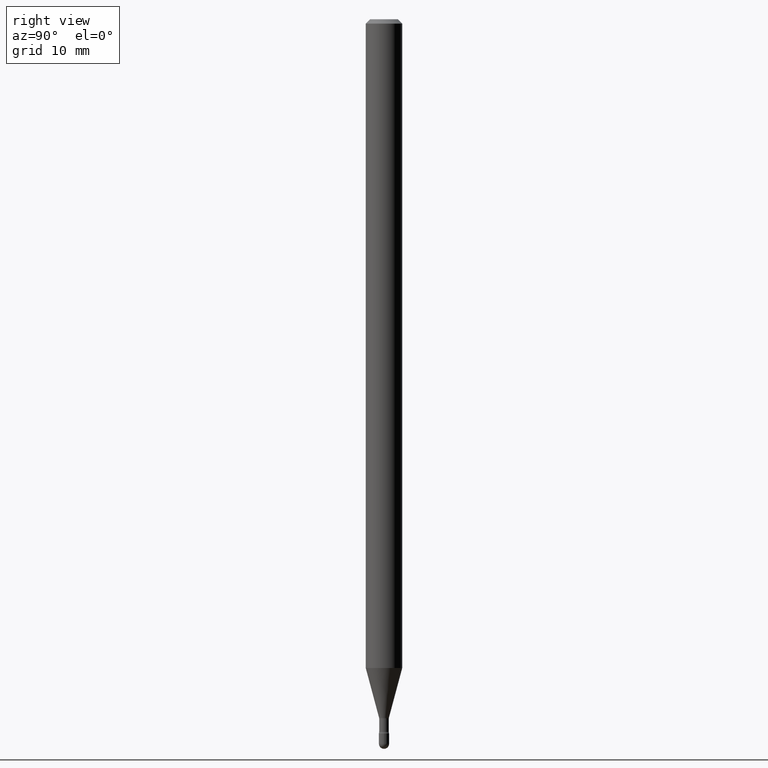
[diagram: clean part render]
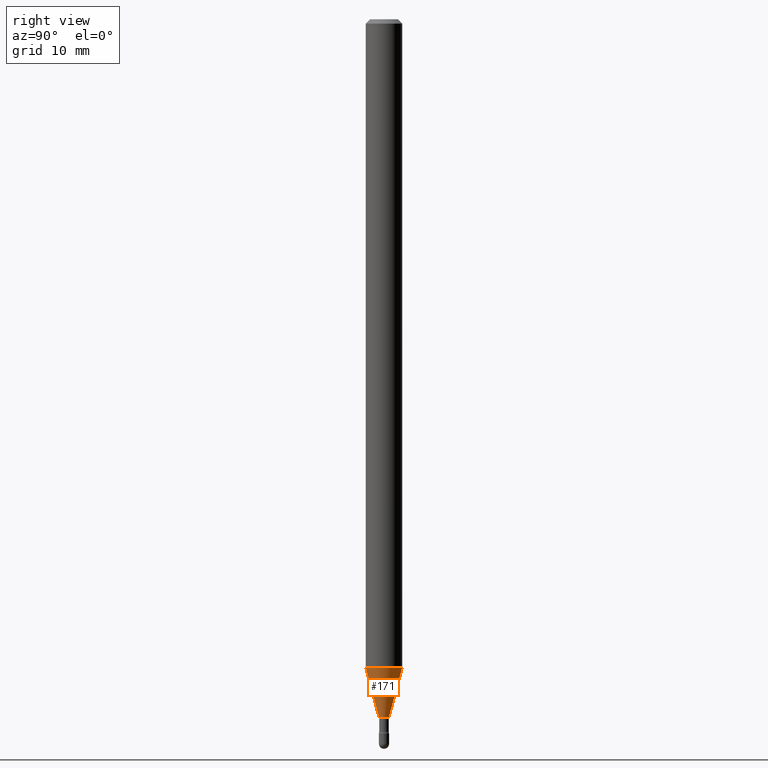
[diagram: same view with one face highlighted and labeled with its STEP entity id]
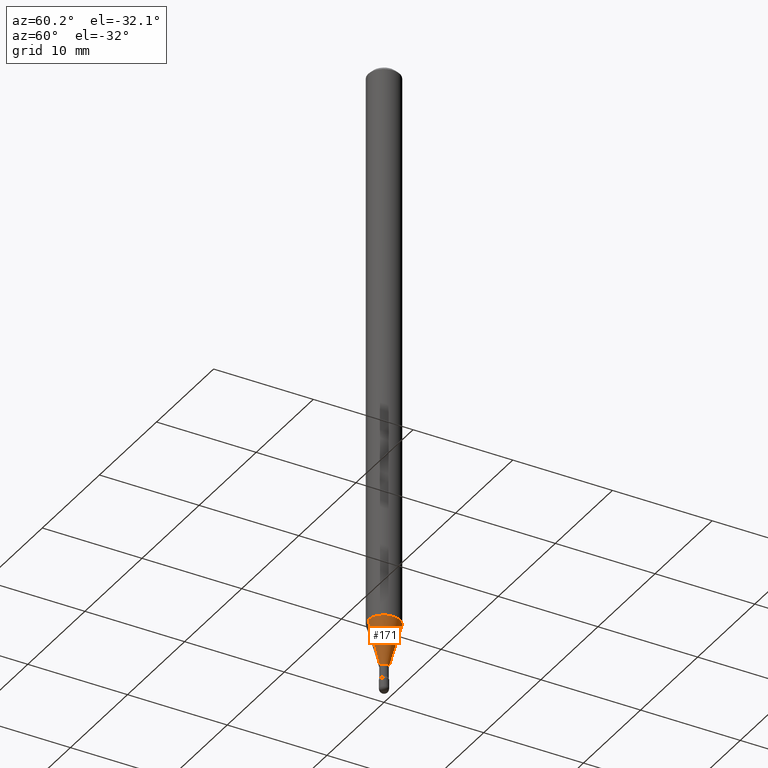
[diagram: same view with one face highlighted and labeled with its STEP entity id]
A machine part, right view. The second image highlights one B-rep face of the part: STEP entity #171.
A second angle (auxiliary view) of the same face is appended — the face is thin or edge-on in the first view.
In plain terms, the highlighted conical surface has half-angle 15 deg.
Its self-contained STEP definition (entity closure, byte-faithful):
#13 = LINE ( 'NONE', #55, #262 ) ;
#14 = FACE_OUTER_BOUND ( 'NONE', #350, .T. ) ;
#22 = DIRECTION ( 'NONE',  ( -2.445478580471014019E-29, 3.491467341509451420E-15, 1.000000000000000000 ) ) ;
#41 = LINE ( 'NONE', #73, #505 ) ;
#55 = CARTESIAN_POINT ( 'NONE',  ( -1.184388162973271173E-16, -0.01696111260567233561, -2.393092501787273285 ) ) ;
#57 = DIRECTION ( 'NONE',  ( -1.807323732225328562E-15, -0.2588190451025179639, 0.9659258262890690894 ) ) ;
#71 = DIRECTION ( 'NONE',  ( -2.445478580471014019E-29, 3.491467341509451420E-15, 1.000000000000000000 ) ) ;
#73 = CARTESIAN_POINT ( 'NONE',  ( 1.205159535236945642E-16, 0.01696111260565562676, -2.393092501787273285 ) ) ;
#94 = VERTEX_POINT ( 'NONE', #416 ) ;
#107 = CARTESIAN_POINT ( 'NONE',  ( -4.364351673553374845E-16, -0.06250000000000778544, -2.223139060311453363 ) ) ;
#135 = AXIS2_PLACEMENT_3D ( 'NONE', #244, #286, #202 ) ;
#161 = CARTESIAN_POINT ( 'NONE',  ( 5.436638953400117610E-29, -7.762017424711450780E-15, -2.223139060311453363 ) ) ;
#167 = AXIS2_PLACEMENT_3D ( 'NONE', #161, #22, #510 ) ;
#171 = ADVANCED_FACE ( 'NONE', ( #14 ), #301, .T. ) ;
#178 = ORIENTED_EDGE ( 'NONE', *, *, #465, .T. ) ;
#180 = EDGE_CURVE ( 'NONE', #308, #94, #418, .T. ) ;
#189 = CARTESIAN_POINT ( 'NONE',  ( 5.852256454206568182E-29, -8.355404315201413602E-15, -2.393092501787273285 ) ) ;
#202 = DIRECTION ( 'NONE',  ( -6.982962677686266711E-15, -1.000000000000000000, 0.000000000000000000 ) ) ;
#213 = CARTESIAN_POINT ( 'NONE',  ( 4.440892098501168504E-16, 0.06249999999999222844, -2.223139060311453807 ) ) ;
#219 = EDGE_CURVE ( 'NONE', #264, #524, #408, .T. ) ;
#234 = ORIENTED_EDGE ( 'NONE', *, *, #180, .T. ) ;
#244 = CARTESIAN_POINT ( 'NONE',  ( 5.852256454206568182E-29, -8.355404315201413602E-15, -2.393092501787273285 ) ) ;
#262 = VECTOR ( 'NONE', #57, 39.37007874015748854 ) ;
#264 = VERTEX_POINT ( 'NONE', #107 ) ;
#286 = DIRECTION ( 'NONE',  ( -2.445478580471014019E-29, 3.491467341509451420E-15, 1.000000000000000000 ) ) ;
#287 = ORIENTED_EDGE ( 'NONE', *, *, #219, .F. ) ;
#297 = DIRECTION ( 'NONE',  ( 1.839019923739598738E-15, 0.2588190451025247363, 0.9659258262890673130 ) ) ;
#301 = CONICAL_SURFACE ( 'NONE', #135, 0.01696111260566398118, 0.2617993877991500740 ) ;
#308 = VERTEX_POINT ( 'NONE', #554 ) ;
#350 = EDGE_LOOP ( 'NONE', ( #234, #178, #287, #548 ) ) ;
#361 = DIRECTION ( 'NONE',  ( -6.982962677686266711E-15, -1.000000000000000000, 0.000000000000000000 ) ) ;
#408 = CIRCLE ( 'NONE', #167, 0.06250000000000000000 ) ;
#416 = CARTESIAN_POINT ( 'NONE',  ( 2.823025816869059292E-16, 0.01696111260565562676, -2.393092501787273285 ) ) ;
#418 = CIRCLE ( 'NONE', #434, 0.01696111260566398118 ) ;
#424 = EDGE_CURVE ( 'NONE', #308, #264, #13, .T. ) ;
#434 = AXIS2_PLACEMENT_3D ( 'NONE', #189, #71, #361 ) ;
#465 = EDGE_CURVE ( 'NONE', #94, #524, #41, .T. ) ;
#505 = VECTOR ( 'NONE', #297, 39.37007874015748854 ) ;
#510 = DIRECTION ( 'NONE',  ( -6.982962677686265922E-15, -1.000000000000000000, 4.370956789862821150E-15 ) ) ;
#524 = VERTEX_POINT ( 'NONE', #213 ) ;
#548 = ORIENTED_EDGE ( 'NONE', *, *, #424, .F. ) ;
#554 = CARTESIAN_POINT ( 'NONE',  ( -1.184388162973271173E-16, -0.01696111260567233561, -2.393092501787273285 ) ) ;